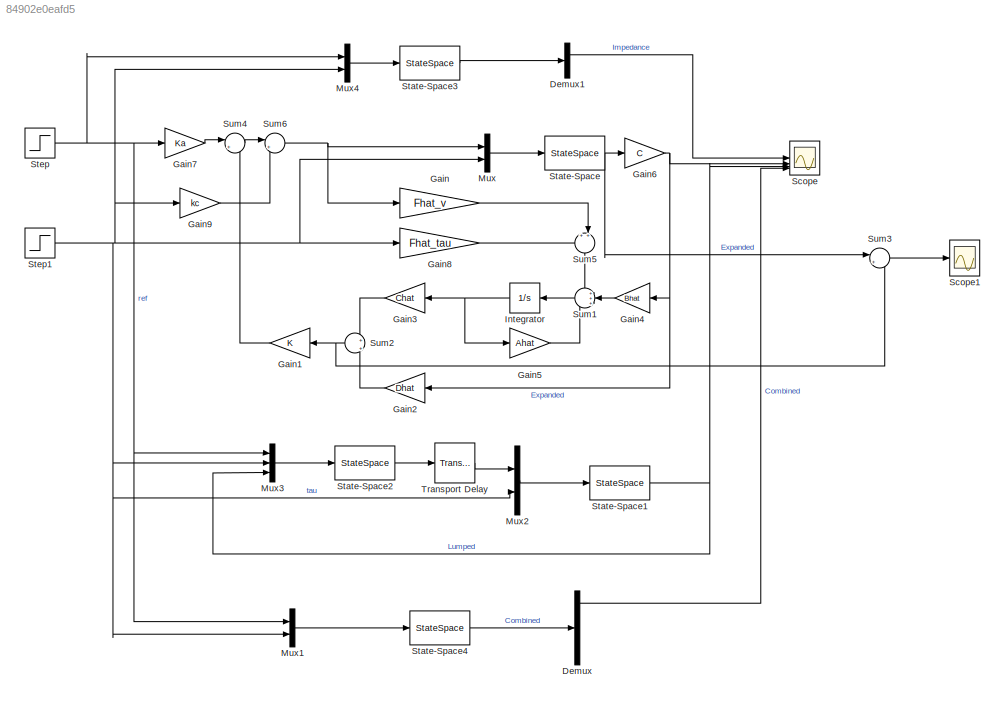
MODEL slx_84902e0eafd5
KIND model
CONFIG AbsTol = auto
CONFIG EnableMultiTasking = off
CONFIG FixedStep = auto
CONFIG MaxStep = auto
CONFIG MinStep = auto
CONFIG RelTol = 1e-3
CONFIG SampleTimeConstraint = Unconstrained
CONFIG SolverName = VariableStepAuto
CONFIG StartTime = 0.0
CONFIG StopTime = 20
BLOCK [Demux] Demux
  Outputs = 5
BLOCK [Demux] Demux1
  Outputs = 2
BLOCK [Gain] Gain
  Gain = Fhat_v
BLOCK [Gain] Gain1
  Gain = K
  Multiplication = Matrix(K*u) (u vector)
  NameLocation = top
BLOCK [Gain] Gain2
  Gain = Dhat
  NameLocation = top
BLOCK [Gain] Gain3
  Gain = Chat
  Multiplication = Matrix(K*u) (u vector)
  NameLocation = top
BLOCK [Gain] Gain4
  Gain = Bhat
  NameLocation = top
BLOCK [Gain] Gain5
  Gain = Ahat
  Multiplication = Matrix(K*u) (u vector)
BLOCK [Gain] Gain6
  Gain = C
  Multiplication = Matrix(K*u) (u vector)
BLOCK [Gain] Gain7
  Gain = Ka
BLOCK [Gain] Gain8
  Gain = Fhat_tau
BLOCK [Gain] Gain9
  Gain = kc
BLOCK [Integrator] Integrator
  InitialCondition = nutildei
  NameLocation = top
BLOCK [Mux] Mux
  DisplayOption = bar
  Inputs = 2
BLOCK [Mux] Mux1
  DisplayOption = bar
  Inputs = 2
BLOCK [Mux] Mux2
  DisplayOption = bar
  Inputs = 2
BLOCK [Mux] Mux3
  DisplayOption = bar
  Inputs = 3
BLOCK [Mux] Mux4
  DisplayOption = bar
  Inputs = 2
BLOCK [Scope] Scope
  Floating = off
  NumInputPorts = 4
  ScopeSpecificationString = Simulink.scopes.TimeScopeBlockCfg('CurrentConfiguration', extmgr.ConfigurationSet(extmgr.Configuration('Core','General UI',true),extmgr.Configuration('Core','Source UI',true),extmgr.Configuration('Sources','WiredSimulink',true),extmgr.Configuration('Visuals','Time Domain',true,'SerializedDisplays',{struct('MinYLimReal','-0.29716','MaxYLimReal','1.14413','YLabelReal','','MinYLimMag','0.00000','MaxY...<+1477ch>
BLOCK [Scope] Scope1
  Floating = off
  NumInputPorts = 1
  ScopeSpecificationString = Simulink.scopes.TimeScopeBlockCfg('CurrentConfiguration', extmgr.ConfigurationSet(extmgr.Configuration('Core','General UI',true),extmgr.Configuration('Core','Source UI',true),extmgr.Configuration('Sources','WiredSimulink',true,'DataLoggingVariableName','ScopeData1'),extmgr.Configuration('Visuals','Time Domain',true,'SerializedDisplays',{struct('MinYLimReal','-11.24704','MaxYLimReal','2.36078','YLa...<+1596ch>
BLOCK [StateSpace] State-Space
  A = A
  B = B
  C = eye(3)
  D = zeros([3, 2])
  InitialCondition = xi
BLOCK [StateSpace] State-Space1
  A = A
  B = B
  C = C
  D = D
  InitialCondition = xi
BLOCK [StateSpace] State-Space2
  A = Atilde
  B = Btilde
  C = Ctilde
  D = Dtilde
  InitialCondition = nutildei
BLOCK [StateSpace] State-Space3
  A = Aimp
  B = Bimp
  C = Cimp
  D = Dimp
  InitialCondition = xi(1:2)
BLOCK [StateSpace] State-Space4
  A = AA
  B = BB
  C = CC
  D = DD
  InitialCondition = [xi; ei]
BLOCK [Step] Step
  After = 0
  SampleTime = 0
  Time = 0
BLOCK [Step] Step1
  After = 0
  SampleTime = 0
  Time = 0
BLOCK [Sum] Sum1
  Inputs = +++
  NameLocation = top
BLOCK [Sum] Sum2
  Inputs = +|+
  NameLocation = top
BLOCK [Sum] Sum3
  Inputs = |+-
BLOCK [Sum] Sum4
  Inputs = |+-
BLOCK [Sum] Sum5
  Inputs = ++|
  NameLocation = left
BLOCK [Sum] Sum6
  Inputs = |+-
BLOCK [TransportDelay] Transport Delay
  DelayTime = 0
LINE Demux1:1 -> Scope:1
LINE Demux:1 -> Scope:4
LINE Gain1:1 -> Sum4:2
LINE Gain2:1 -> Sum2:2
LINE Gain3:1 -> Sum2:1
LINE Gain4:1 -> Sum1:2
LINE Gain5:1 -> Sum1:3
NET Gain6:1 -> Gain2:1, Gain4:1, Scope:2
LINE Gain7:1 -> Sum4:1
LINE Gain8:1 -> Sum5:1
LINE Gain9:1 -> Sum6:2
LINE Gain:1 -> Sum5:2
NET Integrator:1 -> Gain3:1, Gain5:1
LINE Mux1:1 -> State-Space4:1
LINE Mux2:1 -> State-Space1:1
LINE Mux3:1 -> State-Space2:1
LINE Mux4:1 -> State-Space3:1
LINE Mux:1 -> State-Space:1
NET State-Space1:1 -> Mux3:3, Scope:3
LINE State-Space2:1 -> Transport Delay:1
LINE State-Space3:1 -> Demux1:1
LINE State-Space4:1 -> Demux:1
NET State-Space:1 -> Gain6:1, Sum3:1
NET Step1:1 -> Gain8:1, Gain9:1, Mux1:2, Mux2:2, Mux3:2, Mux4:2, Mux:2
NET Step:1 -> Gain7:1, Mux1:1, Mux3:1, Mux4:1
LINE Sum1:1 -> Integrator:1
NET Sum2:1 -> Gain1:1, Sum3:2
LINE Sum3:1 -> Scope1:1
LINE Sum4:1 -> Sum6:1
LINE Sum5:1 -> Sum1:1
NET Sum6:1 -> Gain:1, Mux:1
LINE Transport Delay:1 -> Mux2:1
note: NET lines group one-source signal fan-out (src -> all destinations, sorted); 1:1 wires keep LINE
